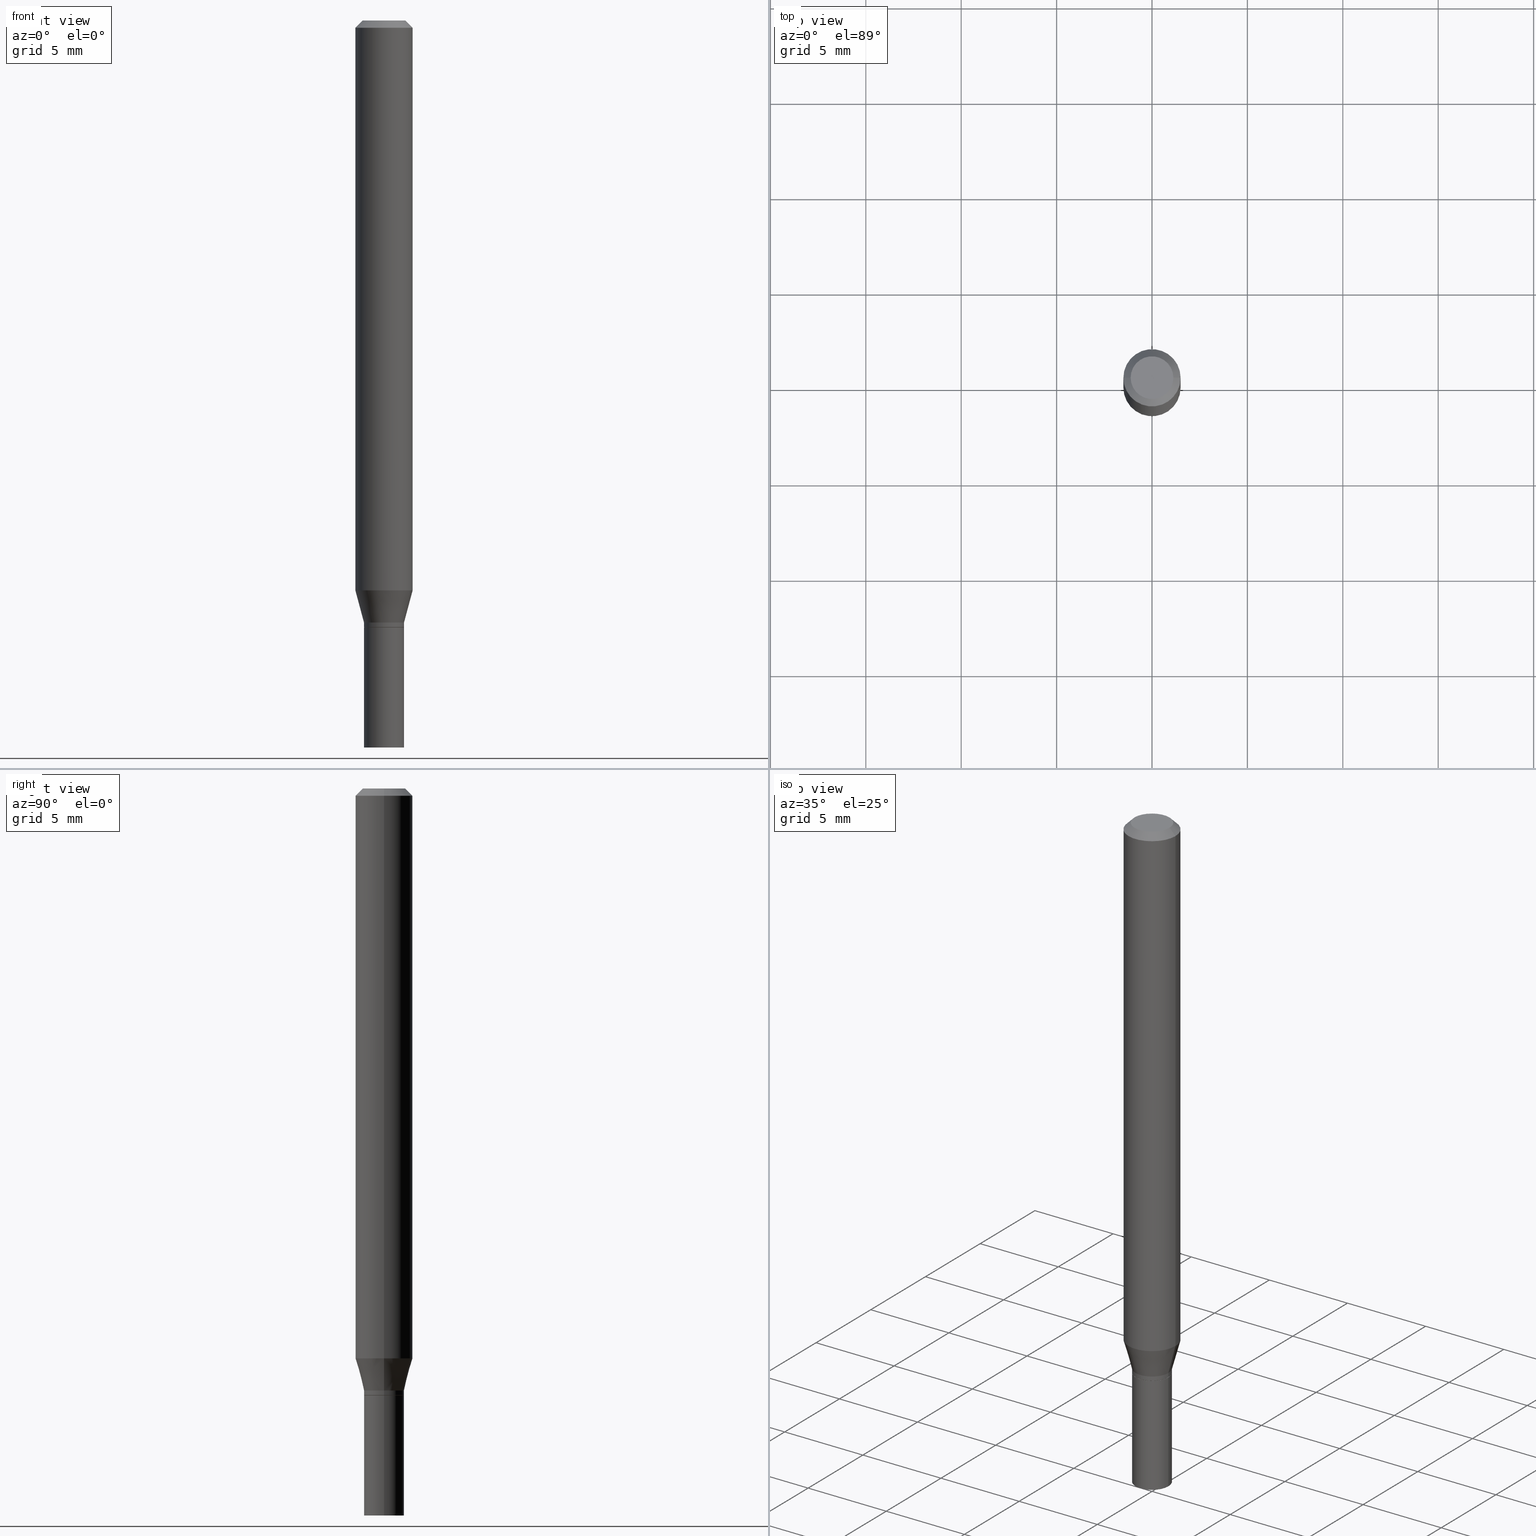
[diagram: canonical four-view strip — front | top / right | iso, engineering-drawing reading convention]
A machine part, canonical four-view strip (front | top / right | iso — engineering-drawing reading convention). The complete STEP part file that produces these views, byte-faithful:
ISO-10303-21;
HEADER;
FILE_DESCRIPTION (( 'STEP AP203' ),
    '1' );
FILE_NAME ('02882.STEP',
    '2024-03-18T21:57:04',
    ( '' ),
    ( '' ),
    'SwSTEP 2.0',
    'SolidWorks 2023',
    '' );
FILE_SCHEMA (( 'CONFIG_CONTROL_DESIGN' ));
ENDSEC;

DATA;
#1 = LINE ( 'NONE', #282, #101 ) ;
#2 = LINE ( 'NONE', #326, #242 ) ;
#3 = ADVANCED_FACE ( 'NONE', ( #92 ), #342, .T. ) ;
#4 = DIRECTION ( 'NONE',  ( -2.445468806185136877E-29, 3.491481338843145188E-15, 1.000000000000000000 ) ) ;
#5 = PERSON_AND_ORGANIZATION ( #107, #453 ) ;
#6 = CARTESIAN_POINT ( 'NONE',  ( 0.04134999999999999787, -4.660080142953946220E-15, -1.252000000000000224 ) ) ;
#7 = CIRCLE ( 'NONE', #362, 0.04084999999999999742 ) ;
#8 = APPROVAL_PERSON_ORGANIZATION ( #5, #310, #357 ) ;
#9 = VERTEX_POINT ( 'NONE', #338 ) ;
#10 = CARTESIAN_POINT ( 'NONE',  ( 0.000000000000000000, 0.000000000000000000, 0.000000000000000000 ) ) ;
#11 = PERSON_AND_ORGANIZATION_ROLE ( 'creator' ) ;
#12 = CARTESIAN_POINT ( 'NONE',  ( 0.04134999999999992154, -2.887455067223266003E-16, 2.016299096791615782E-30 ) ) ;
#13 = ORIENTED_EDGE ( 'NONE', *, *, #209, .F. ) ;
#14 = FACE_OUTER_BOUND ( 'NONE', #375, .T. ) ;
#15 = COORDINATED_UNIVERSAL_TIME_OFFSET ( 5, 0, .BEHIND. ) ;
#16 = APPROVAL ( #422, 'UNSPECIFIED' ) ;
#17 = ORIENTED_EDGE ( 'NONE', *, *, #201, .F. ) ;
#18 = DIRECTION ( 'NONE',  ( -2.445468806185136597E-29, 3.491481338843145583E-15, 1.000000000000000000 ) ) ;
#19 = DATE_TIME_ROLE ( 'classification_date' ) ;
#20 = CIRCLE ( 'NONE', #358, 0.04134999999999999787 ) ;
#21 = AXIS2_PLACEMENT_3D ( 'NONE', #333, #415, #225 ) ;
#22 = CARTESIAN_POINT ( 'NONE',  ( -0.05904999999999999832, -3.686206509597577830E-15, -1.175942700706030575 ) ) ;
#23 = DIRECTION ( 'NONE',  ( 1.000000000000000000, -6.982962677686273021E-15, 0.000000000000000000 ) ) ;
#24 = CARTESIAN_POINT ( 'NONE',  ( 3.668203209277705088E-31, -5.237222008264718399E-17, -0.01499999999999999944 ) ) ;
#25 = ADVANCED_FACE ( 'NONE', ( #231 ), #167, .F. ) ;
#26 = VERTEX_POINT ( 'NONE', #193 ) ;
#27 = DIRECTION ( 'NONE',  ( -2.445468806185136597E-29, 3.491481338843145583E-15, 1.000000000000000000 ) ) ;
#28 = CARTESIAN_POINT ( 'NONE',  ( 0.000000000000000000, 0.000000000000000000, 0.000000000000000000 ) ) ;
#29 = CARTESIAN_POINT ( 'NONE',  ( -0.04084999999999999742, -4.078428701499507560E-15, -1.252000000000000224 ) ) ;
#30 = CIRCLE ( 'NONE', #431, 0.04134999999999992154 ) ;
#31 = DIRECTION ( 'NONE',  ( -2.445468806185136877E-29, 3.491481338843145188E-15, 1.000000000000000000 ) ) ;
#32 = CIRCLE ( 'NONE', #316, 0.05904999999999999832 ) ;
#33 = EDGE_CURVE ( 'NONE', #295, #190, #20, .T. ) ;
#34 = LINE ( 'NONE', #181, #42 ) ;
#35 = LINE ( 'NONE', #293, #246 ) ;
#36 = AXIS2_PLACEMENT_3D ( 'NONE', #48, #355, #241 ) ;
#37 = CARTESIAN_POINT ( 'NONE',  ( -0.05904999999999999832, -1.659501622106942511E-15, -0.01499999999999999944 ) ) ;
#38 = CARTESIAN_POINT ( 'NONE',  ( 0.000000000000000000, 0.000000000000000000, 0.000000000000000000 ) ) ;
#39 = CALENDAR_DATE ( 2024, 18, 3 ) ;
#40 = ORIENTED_EDGE ( 'NONE', *, *, #102, .F. ) ;
#41 = CIRCLE ( 'NONE', #147, 0.05904999999999999832 ) ;
#42 = VECTOR ( 'NONE', #178, 39.37007874015748143 ) ;
#43 = CARTESIAN_POINT ( 'NONE',  ( 0.04134999999999991460, -4.625165329565513782E-15, -1.241999999999999993 ) ) ;
#44 = ADVANCED_FACE ( 'NONE', ( #164 ), #118, .F. ) ;
#45 = CARTESIAN_POINT ( 'NONE',  ( 3.668203209277705088E-31, -5.237222008264718399E-17, -0.01499999999999999944 ) ) ;
#46 = EDGE_LOOP ( 'NONE', ( #416, #447, #117, #192 ) ) ;
#47 = DIRECTION ( 'NONE',  ( -2.445468806185136597E-29, 3.491481338843145583E-15, 1.000000000000000000 ) ) ;
#48 = CARTESIAN_POINT ( 'NONE',  ( 5.113335882009178277E-45, -7.300488465081862281E-31, -2.090942999999186255E-16 ) ) ;
#49 = DIRECTION ( 'NONE',  ( -2.445468806185136597E-29, 3.491481338843145583E-15, 1.000000000000000000 ) ) ;
#50 = DIRECTION ( 'NONE',  ( 2.445468806185136597E-29, -3.491481338843145583E-15, -1.000000000000000000 ) ) ;
#51 = ORIENTED_EDGE ( 'NONE', *, *, #318, .F. ) ;
#52 = DIRECTION ( 'NONE',  ( -1.000000000000000000, 6.982962677686265922E-15, -4.876176775795935793E-29 ) ) ;
#53 = DIRECTION ( 'NONE',  ( -2.445468806185136597E-29, 3.491481338843145583E-15, 1.000000000000000000 ) ) ;
#54 = DATE_AND_TIME ( #289, #197 ) ;
#55 = ORIENTED_EDGE ( 'NONE', *, *, #171, .T. ) ;
#56 = CC_DESIGN_PERSON_AND_ORGANIZATION_ASSIGNMENT ( #151, #79, ( #345 ) ) ;
#57 = AXIS2_PLACEMENT_3D ( 'NONE', #258, #307, #52 ) ;
#58 = CONICAL_SURFACE ( 'NONE', #397, 0.04134999999999991460, 0.2617993877991495189 ) ;
#59 = CARTESIAN_POINT ( 'NONE',  ( -0.05904999999999999832, 3.599717260347268549E-16, -0.01499999999999999944 ) ) ;
#60 = ORIENTED_EDGE ( 'NONE', *, *, #459, .F. ) ;
#61 = PLANE ( 'NONE',  #464 ) ;
#62 = VERTEX_POINT ( 'NONE', #227 ) ;
#63 = DIRECTION ( 'NONE',  ( -0.7071067811865524577, 2.468850131082309125E-15, -0.7071067811865424657 ) ) ;
#64 = CARTESIAN_POINT ( 'NONE',  ( -0.04134999999999999787, -4.510468901011368103E-15, -1.252000000000000224 ) ) ;
#65 =( CONVERSION_BASED_UNIT ( 'INCH', #315 ) LENGTH_UNIT ( ) NAMED_UNIT ( #156 ) );
#66 = EDGE_CURVE ( 'NONE', #300, #448, #314, .T. ) ;
#67 = AXIS2_PLACEMENT_3D ( 'NONE', #255, #74, #215 ) ;
#68 = APPROVAL_STATUS ( 'not_yet_approved' ) ;
#69 = DIRECTION ( 'NONE',  ( 0.7071067811865656694, -2.468850131082446387E-15, 0.7071067811865294761 ) ) ;
#70 = DESIGN_CONTEXT ( 'detailed design', #152, 'design' ) ;
#71 = VECTOR ( 'NONE', #376, 39.37007874015748143 ) ;
#72 = DIRECTION ( 'NONE',  ( -2.445468806185136877E-29, 3.491481338843145188E-15, 1.000000000000000000 ) ) ;
#73 = DIRECTION ( 'NONE',  ( -2.445468806185136597E-29, 3.491481338843145583E-15, 1.000000000000000000 ) ) ;
#74 = DIRECTION ( 'NONE',  ( 2.445468806185136597E-29, -3.491481338843145583E-15, -1.000000000000000000 ) ) ;
#75 = ADVANCED_FACE ( 'NONE', ( #126 ), #266, .T. ) ;
#76 = PLANE ( 'NONE',  #21 ) ;
#77 = CARTESIAN_POINT ( 'NONE',  ( 3.576687321579069994E-29, -5.368277968210015545E-15, -1.500000000000000222 ) ) ;
#78 = DIRECTION ( 'NONE',  ( -2.445468806185136597E-29, 3.491481338843145583E-15, 1.000000000000000000 ) ) ;
#79 = PERSON_AND_ORGANIZATION_ROLE ( 'design_supplier' ) ;
#80 = CLOSED_SHELL ( 'NONE', ( #330, #460, #88, #294, #3, #430, #435, #319, #428, #125, #146, #75 ) ) ;
#81 = VECTOR ( 'NONE', #283, 39.37007874015748854 ) ;
#82 = ORIENTED_EDGE ( 'NONE', *, *, #169, .F. ) ;
#83 = DIRECTION ( 'NONE',  ( 1.000000000000000000, -6.982962677686265922E-15, 4.876176775795935793E-29 ) ) ;
#84 = CARTESIAN_POINT ( 'NONE',  ( 3.061726945343791391E-29, -4.371334636231619274E-15, -1.252000000000000224 ) ) ;
#85 = SECURITY_CLASSIFICATION_LEVEL ( 'unclassified' ) ;
#86 = ORIENTED_EDGE ( 'NONE', *, *, #33, .F. ) ;
#87 = VERTEX_POINT ( 'NONE', #29 ) ;
#88 = ADVANCED_FACE ( 'NONE', ( #257 ), #170, .T. ) ;
#89 = ORIENTED_EDGE ( 'NONE', *, *, #366, .T. ) ;
#90 = FACE_OUTER_BOUND ( 'NONE', #423, .T. ) ;
#91 = PRODUCT_DEFINITION_SHAPE ( 'NONE', 'NONE',  #261 ) ;
#92 = FACE_OUTER_BOUND ( 'NONE', #214, .T. ) ;
#93 = DIRECTION ( 'NONE',  ( 1.000000000000000000, -6.982962677686267499E-15, 4.876176775795936353E-29 ) ) ;
#94 = PERSON_AND_ORGANIZATION ( #107, #453 ) ;
#95 = EDGE_LOOP ( 'NONE', ( #148, #377, #60, #226 ) ) ;
#96 = DIRECTION ( 'NONE',  ( -2.445468806185136597E-29, 3.491481338843145583E-15, 1.000000000000000000 ) ) ;
#97 = VERTEX_POINT ( 'NONE', #22 ) ;
#98 = ADVANCED_BREP_SHAPE_REPRESENTATION ( '02882', ( #312, #317, #243 ), #104 ) ;
#99 = CC_DESIGN_DATE_AND_TIME_ASSIGNMENT ( #54, #371, ( #261 ) ) ;
#100 =( NAMED_UNIT ( * ) PLANE_ANGLE_UNIT ( ) SI_UNIT ( $, .RADIAN. ) );
#101 = VECTOR ( 'NONE', #142, 39.37007874015748854 ) ;
#102 = EDGE_CURVE ( 'NONE', #239, #9, #30, .T. ) ;
#103 = AXIS2_PLACEMENT_3D ( 'NONE', #339, #18, #281 ) ;
#104 =( GEOMETRIC_REPRESENTATION_CONTEXT ( 3 ) GLOBAL_UNCERTAINTY_ASSIGNED_CONTEXT ( ( #349 ) ) GLOBAL_UNIT_ASSIGNED_CONTEXT ( ( #65, #100, #395 ) ) REPRESENTATION_CONTEXT ( 'NONE', 'WORKASPACE' ) );
#105 = PERSON_AND_ORGANIZATION_ROLE ( 'design_owner' ) ;
#106 = PERSON_AND_ORGANIZATION ( #107, #453 ) ;
#107 = PERSON ( 'UNSPECIFIED', 'UNSPECIFIED', 'UNSPECIFIED', ('UNSPECIFIED'), ('UNSPECIFIED'), ('UNSPECIFIED') ) ;
#108 = AXIS2_PLACEMENT_3D ( 'NONE', #379, #49, #454 ) ;
#109 = CARTESIAN_POINT ( 'NONE',  ( 3.060504210940699150E-29, -4.369588895562197771E-15, -1.251500000000000279 ) ) ;
#110 = CIRCLE ( 'NONE', #176, 0.04134999999999991460 ) ;
#111 = CC_DESIGN_APPROVAL ( #398, ( #261 ) ) ;
#112 = FACE_OUTER_BOUND ( 'NONE', #182, .T. ) ;
#113 = DIRECTION ( 'NONE',  ( 1.000000000000000000, -6.982962677686262766E-15, 0.000000000000000000 ) ) ;
#114 = APPROVAL_DATE_TIME ( #442, #16 ) ;
#115 = EDGE_CURVE ( 'NONE', #97, #62, #452, .T. ) ;
#116 = SHAPE_DEFINITION_REPRESENTATION ( #91, #98 ) ;
#117 = ORIENTED_EDGE ( 'NONE', *, *, #270, .T. ) ;
#118 = PLANE ( 'NONE',  #401 ) ;
#119 = DIRECTION ( 'NONE',  ( -2.445468806185136597E-29, 3.491481338843145583E-15, 1.000000000000000000 ) ) ;
#120 = EDGE_LOOP ( 'NONE', ( #199, #271 ) ) ;
#121 = ORIENTED_EDGE ( 'NONE', *, *, #303, .T. ) ;
#122 = FACE_OUTER_BOUND ( 'NONE', #46, .T. ) ;
#123 = AXIS2_PLACEMENT_3D ( 'NONE', #287, #254, #291 ) ;
#124 = SECURITY_CLASSIFICATION ( '', '', #85 ) ;
#125 = ADVANCED_FACE ( 'NONE', ( #409 ), #76, .F. ) ;
#126 = FACE_OUTER_BOUND ( 'NONE', #388, .T. ) ;
#127 = DIRECTION ( 'NONE',  ( 1.000000000000000000, -6.982962677686265922E-15, 4.888540261209747396E-29 ) ) ;
#128 = EDGE_LOOP ( 'NONE', ( #269, #337, #429, #157 ) ) ;
#129 = DIRECTION ( 'NONE',  ( -2.445468806185136877E-29, 3.491481338843145188E-15, 1.000000000000000000 ) ) ;
#130 = ORIENTED_EDGE ( 'NONE', *, *, #405, .T. ) ;
#131 = ORIENTED_EDGE ( 'NONE', *, *, #171, .F. ) ;
#132 = DIRECTION ( 'NONE',  ( 2.438088387897960049E-29, -3.491481338843145188E-15, -1.000000000000000000 ) ) ;
#133 = VECTOR ( 'NONE', #31, 39.37007874015748143 ) ;
#134 = ORIENTED_EDGE ( 'NONE', *, *, #390, .T. ) ;
#135 = EDGE_CURVE ( 'NONE', #306, #26, #139, .T. ) ;
#136 = CARTESIAN_POINT ( 'NONE',  ( 3.061726945343791391E-29, -4.371334636231619274E-15, -1.252000000000000224 ) ) ;
#137 = LINE ( 'NONE', #278, #81 ) ;
#138 = AXIS2_PLACEMENT_3D ( 'NONE', #411, #27, #187 ) ;
#139 = CIRCLE ( 'NONE', #36, 0.04404999999999999888 ) ;
#140 = CC_DESIGN_PERSON_AND_ORGANIZATION_ASSIGNMENT ( #185, #11, ( #345 ) ) ;
#141 = CIRCLE ( 'NONE', #280, 0.04134999999999999787 ) ;
#142 = DIRECTION ( 'NONE',  ( -0.2588190451025207950, 5.211531920934546309E-15, 0.9659258262890682012 ) ) ;
#143 = PRODUCT_RELATED_PRODUCT_CATEGORY ( 'detail', '', ( #418 ) ) ;
#144 = CARTESIAN_POINT ( 'NONE',  ( 3.061726945343791391E-29, -4.371334636231619274E-15, -1.252000000000000224 ) ) ;
#145 = CARTESIAN_POINT ( 'NONE',  ( 0.04404999999999999888, -3.798447818264464023E-16, -2.090942999999162343E-16 ) ) ;
#146 = ADVANCED_FACE ( 'NONE', ( #276 ), #359, .T. ) ;
#147 = AXIS2_PLACEMENT_3D ( 'NONE', #440, #78, #321 ) ;
#148 = ORIENTED_EDGE ( 'NONE', *, *, #279, .T. ) ;
#149 = ORIENTED_EDGE ( 'NONE', *, *, #340, .T. ) ;
#150 = CARTESIAN_POINT ( 'NONE',  ( 0.000000000000000000, 0.000000000000000000, 0.000000000000000000 ) ) ;
#151 = PERSON_AND_ORGANIZATION ( #107, #453 ) ;
#152 = APPLICATION_CONTEXT ( 'configuration controlled 3d designs of mechanical parts and assemblies' ) ;
#153 = CARTESIAN_POINT ( 'NONE',  ( 3.668203209277705088E-31, -5.237222008264718399E-17, -0.01499999999999999944 ) ) ;
#154 = ORIENTED_EDGE ( 'NONE', *, *, #465, .T. ) ;
#155 = ORIENTED_EDGE ( 'NONE', *, *, #465, .F. ) ;
#156 = DIMENSIONAL_EXPONENTS ( 1.000000000000000000, 0.000000000000000000, 0.000000000000000000, 0.000000000000000000, 0.000000000000000000, 0.000000000000000000, 0.000000000000000000 ) ;
#157 = ORIENTED_EDGE ( 'NONE', *, *, #179, .F. ) ;
#158 = DIRECTION ( 'NONE',  ( -2.445468806185136597E-29, 3.491481338843145583E-15, 1.000000000000000000 ) ) ;
#159 = CLOSED_SHELL ( 'NONE', ( #396, #44, #356, #25 ) ) ;
#160 = AXIS2_PLACEMENT_3D ( 'NONE', #335, #424, #127 ) ;
#161 = CALENDAR_DATE ( 2024, 18, 3 ) ;
#162 = CARTESIAN_POINT ( 'NONE',  ( 3.060504210940699150E-29, -4.369588895562197771E-15, -1.251500000000000279 ) ) ;
#163 = ORIENTED_EDGE ( 'NONE', *, *, #405, .F. ) ;
#164 = FACE_OUTER_BOUND ( 'NONE', #386, .T. ) ;
#165 = CARTESIAN_POINT ( 'NONE',  ( 3.668203209277704895E-29, -5.237222008264718177E-15, -1.500000000000000222 ) ) ;
#166 = ORIENTED_EDGE ( 'NONE', *, *, #284, .T. ) ;
#167 = PLANE ( 'NONE',  #57 ) ;
#168 = DIRECTION ( 'NONE',  ( 1.000000000000000000, -6.982962677686267499E-15, 4.876176775795936353E-29 ) ) ;
#169 = EDGE_CURVE ( 'NONE', #190, #295, #141, .T. ) ;
#170 = CONICAL_SURFACE ( 'NONE', #433, 0.05904999999999999832, 0.7853981633974553844 ) ;
#171 = EDGE_CURVE ( 'NONE', #240, #444, #110, .T. ) ;
#172 = AXIS2_PLACEMENT_3D ( 'NONE', #28, #53, #168 ) ;
#173 = LOCAL_TIME ( 17, 57, 4.000000000000000000, #259 ) ;
#174 = CC_DESIGN_PERSON_AND_ORGANIZATION_ASSIGNMENT ( #94, #216, ( #261 ) ) ;
#175 = DIRECTION ( 'NONE',  ( 1.000000000000000000, -6.982962677686267499E-15, 4.876176775795936353E-29 ) ) ;
#176 = AXIS2_PLACEMENT_3D ( 'NONE', #249, #96, #391 ) ;
#177 = CARTESIAN_POINT ( 'NONE',  ( 3.061726945343791391E-29, -4.371334636231619274E-15, -1.252000000000000224 ) ) ;
#178 = DIRECTION ( 'NONE',  ( -2.445468806185136877E-29, 3.491481338843145188E-15, 1.000000000000000000 ) ) ;
#179 = EDGE_CURVE ( 'NONE', #26, #263, #393, .T. ) ;
#180 = APPLICATION_CONTEXT ( 'configuration controlled 3d designs of mechanical parts and assemblies' ) ;
#181 = CARTESIAN_POINT ( 'NONE',  ( 0.04134999999999999787, -2.887455067223271427E-16, 2.016299096791619635E-30 ) ) ;
#182 = EDGE_LOOP ( 'NONE', ( #121, #166, #51, #13 ) ) ;
#183 = CYLINDRICAL_SURFACE ( 'NONE', #323, 0.04134999999999992154 ) ;
#184 = VECTOR ( 'NONE', #129, 39.37007874015748143 ) ;
#185 = PERSON_AND_ORGANIZATION ( #107, #453 ) ;
#186 = CONICAL_SURFACE ( 'NONE', #389, 0.04084999999999999742, 0.7853981633974739252 ) ;
#187 = DIRECTION ( 'NONE',  ( 1.000000000000000000, -6.982962677686275388E-15, 0.000000000000000000 ) ) ;
#188 = CARTESIAN_POINT ( 'NONE',  ( 0.05904999999999999832, -4.574846268510561447E-16, -0.01499999999999999944 ) ) ;
#189 = EDGE_LOOP ( 'NONE', ( #299, #392, #236, #89 ) ) ;
#190 = VERTEX_POINT ( 'NONE', #64 ) ;
#191 = CYLINDRICAL_SURFACE ( 'NONE', #103, 0.05904999999999999832 ) ;
#192 = ORIENTED_EDGE ( 'NONE', *, *, #366, .F. ) ;
#193 = CARTESIAN_POINT ( 'NONE',  ( -0.04404999999999999888, 3.337856159934030687E-16, -2.090942999999208688E-16 ) ) ;
#194 = DIRECTION ( 'NONE',  ( -2.445468806185136597E-29, 3.491481338843145583E-15, 1.000000000000000000 ) ) ;
#195 = VECTOR ( 'NONE', #69, 39.37007874015748143 ) ;
#196 = ORIENTED_EDGE ( 'NONE', *, *, #209, .T. ) ;
#197 = LOCAL_TIME ( 17, 57, 4.000000000000000000, #302 ) ;
#198 = LINE ( 'NONE', #311, #133 ) ;
#199 = ORIENTED_EDGE ( 'NONE', *, *, #33, .T. ) ;
#200 = LINE ( 'NONE', #421, #184 ) ;
#201 = EDGE_CURVE ( 'NONE', #448, #190, #198, .T. ) ;
#202 = DIRECTION ( 'NONE',  ( -2.445468806185136597E-29, 3.491481338843145583E-15, 1.000000000000000000 ) ) ;
#203 = AXIS2_PLACEMENT_3D ( 'NONE', #109, #324, #113 ) ;
#204 = APPROVAL_PERSON_ORGANIZATION ( #298, #16, #450 ) ;
#205 = CARTESIAN_POINT ( 'NONE',  ( 3.061726945343791391E-29, -4.371334636231619274E-15, -1.252000000000000224 ) ) ;
#206 = EDGE_CURVE ( 'NONE', #444, #62, #137, .T. ) ;
#207 = AXIS2_PLACEMENT_3D ( 'NONE', #177, #445, #365 ) ;
#208 = VECTOR ( 'NONE', #4, 39.37007874015748143 ) ;
#209 = EDGE_CURVE ( 'NONE', #296, #9, #437, .T. ) ;
#210 = APPROVAL_ROLE ( '' ) ;
#211 = CARTESIAN_POINT ( 'NONE',  ( -0.04134999999999991460, -3.864408455601981627E-15, -1.241999999999999993 ) ) ;
#212 = CC_DESIGN_PERSON_AND_ORGANIZATION_ASSIGNMENT ( #466, #105, ( #418 ) ) ;
#213 = CARTESIAN_POINT ( 'NONE',  ( 0.04134999999999999787, -5.525967514987045911E-15, -1.500000000000000222 ) ) ;
#214 = EDGE_LOOP ( 'NONE', ( #230, #149, #410, #348 ) ) ;
#215 = DIRECTION ( 'NONE',  ( -1.000000000000000000, 6.982962677686266711E-15, 0.000000000000000000 ) ) ;
#216 = PERSON_AND_ORGANIZATION_ROLE ( 'creator' ) ;
#217 = APPROVAL_DATE_TIME ( #341, #310 ) ;
#218 = ORIENTED_EDGE ( 'NONE', *, *, #439, .T. ) ;
#219 = AXIS2_PLACEMENT_3D ( 'NONE', #420, #202, #350 ) ;
#220 = DIRECTION ( 'NONE',  ( -2.438088387897960049E-29, 3.491481338843145188E-15, 1.000000000000000000 ) ) ;
#221 = DIRECTION ( 'NONE',  ( -2.445468806185136597E-29, 3.491481338843145583E-15, 1.000000000000000000 ) ) ;
#222 = CC_DESIGN_APPROVAL ( #310, ( #124 ) ) ;
#223 = ORIENTED_EDGE ( 'NONE', *, *, #303, .F. ) ;
#224 = CC_DESIGN_DATE_AND_TIME_ASSIGNMENT ( #381, #19, ( #124 ) ) ;
#225 = DIRECTION ( 'NONE',  ( 1.000000000000000000, -6.982962677686265922E-15, 4.876176775795935793E-29 ) ) ;
#226 = ORIENTED_EDGE ( 'NONE', *, *, #270, .F. ) ;
#227 = CARTESIAN_POINT ( 'NONE',  ( 0.05904999999999999832, -4.518125941181290665E-15, -1.175942700706030575 ) ) ;
#228 = DIRECTION ( 'NONE',  ( -1.000000000000000000, 6.982962677686265922E-15, -4.876176775795935793E-29 ) ) ;
#229 = PERSON_AND_ORGANIZATION_ROLE ( 'classification_officer' ) ;
#230 = ORIENTED_EDGE ( 'NONE', *, *, #237, .T. ) ;
#231 = FACE_OUTER_BOUND ( 'NONE', #120, .T. ) ;
#232 = DIRECTION ( 'NONE',  ( 1.000000000000000000, -6.982962677686261189E-15, 0.000000000000000000 ) ) ;
#233 = ORIENTED_EDGE ( 'NONE', *, *, #102, .T. ) ;
#234 = DIRECTION ( 'NONE',  ( -2.445468806185136597E-29, 3.491481338843145583E-15, 1.000000000000000000 ) ) ;
#235 = CC_DESIGN_PERSON_AND_ORGANIZATION_ASSIGNMENT ( #446, #229, ( #124 ) ) ;
#236 = ORIENTED_EDGE ( 'NONE', *, *, #179, .T. ) ;
#237 = EDGE_CURVE ( 'NONE', #444, #240, #426, .T. ) ;
#238 = DIRECTION ( 'NONE',  ( -2.445468806185136597E-29, 3.491481338843145583E-15, 1.000000000000000000 ) ) ;
#239 = VERTEX_POINT ( 'NONE', #402 ) ;
#240 = VERTEX_POINT ( 'NONE', #211 ) ;
#241 = DIRECTION ( 'NONE',  ( 1.000000000000000000, -6.982962677686265922E-15, 4.888540261209747396E-29 ) ) ;
#242 = VECTOR ( 'NONE', #400, 39.37007874015748143 ) ;
#243 = AXIS2_PLACEMENT_3D ( 'NONE', #38, #322, #361 ) ;
#244 = EDGE_LOOP ( 'NONE', ( #17, #130, #218, #82 ) ) ;
#245 = EDGE_CURVE ( 'NONE', #239, #240, #35, .T. ) ;
#246 = VECTOR ( 'NONE', #72, 39.37007874015748143 ) ;
#247 = APPROVAL_STATUS ( 'not_yet_approved' ) ;
#248 = APPLICATION_PROTOCOL_DEFINITION ( 'international standard', 'config_control_design', 1994, #152 ) ;
#249 = CARTESIAN_POINT ( 'NONE',  ( 3.037272257281939846E-29, -4.336419822843186836E-15, -1.241999999999999993 ) ) ;
#250 = CARTESIAN_POINT ( 'NONE',  ( 0.04084999999999999742, -4.656588661615103213E-15, -1.252000000000000224 ) ) ;
#251 = COORDINATED_UNIVERSAL_TIME_OFFSET ( 5, 0, .BEHIND. ) ;
#252 = DIRECTION ( 'NONE',  ( -2.445468806185136597E-29, 3.491481338843145583E-15, 1.000000000000000000 ) ) ;
#253 = CARTESIAN_POINT ( 'NONE',  ( 0.04084999999999999742, -4.656588661615103213E-15, -1.252000000000000224 ) ) ;
#254 = DIRECTION ( 'NONE',  ( -2.445468806185136597E-29, 3.491481338843145583E-15, 1.000000000000000000 ) ) ;
#255 = CARTESIAN_POINT ( 'NONE',  ( 3.668203209277705088E-31, -5.237222008264718399E-17, -0.01499999999999999944 ) ) ;
#256 = DIRECTION ( 'NONE',  ( 1.000000000000000000, -6.982962677686261189E-15, 0.000000000000000000 ) ) ;
#257 = FACE_OUTER_BOUND ( 'NONE', #128, .T. ) ;
#258 = CARTESIAN_POINT ( 'NONE',  ( 2.887455067223577110E-16, 0.04134999999999562637, -1.252000000000000446 ) ) ;
#259 = COORDINATED_UNIVERSAL_TIME_OFFSET ( 5, 0, .BEHIND. ) ;
#260 = ORIENTED_EDGE ( 'NONE', *, *, #439, .F. ) ;
#261 = PRODUCT_DEFINITION ( 'UNKNOWN', '', #345, #70 ) ;
#262 = CONICAL_SURFACE ( 'NONE', #67, 0.05904999999999999832, 0.7853981633974553844 ) ;
#263 = VERTEX_POINT ( 'NONE', #37 ) ;
#264 = FACE_OUTER_BOUND ( 'NONE', #419, .T. ) ;
#265 = CALENDAR_DATE ( 2024, 18, 3 ) ;
#266 = CYLINDRICAL_SURFACE ( 'NONE', #219, 0.04134999999999992154 ) ;
#267 = DIRECTION ( 'NONE',  ( 1.000000000000000000, -6.982962677686273021E-15, 0.000000000000000000 ) ) ;
#268 = DIRECTION ( 'NONE',  ( -1.000000000000000000, 6.982962677686266711E-15, 0.000000000000000000 ) ) ;
#269 = ORIENTED_EDGE ( 'NONE', *, *, #135, .F. ) ;
#270 = EDGE_CURVE ( 'NONE', #62, #382, #2, .T. ) ;
#271 = ORIENTED_EDGE ( 'NONE', *, *, #169, .T. ) ;
#272 = DIRECTION ( 'NONE',  ( -2.445468806185136597E-29, 3.491481338843145583E-15, 1.000000000000000000 ) ) ;
#273 = FACE_OUTER_BOUND ( 'NONE', #244, .T. ) ;
#274 = CIRCLE ( 'NONE', #203, 0.04134999999999992154 ) ;
#275 = CC_DESIGN_SECURITY_CLASSIFICATION ( #124, ( #345 ) ) ;
#276 = FACE_OUTER_BOUND ( 'NONE', #408, .T. ) ;
#277 = ORIENTED_EDGE ( 'NONE', *, *, #66, .F. ) ;
#278 = CARTESIAN_POINT ( 'NONE',  ( 0.04134999999999991460, -4.625165329565513782E-15, -1.241999999999999993 ) ) ;
#279 = EDGE_CURVE ( 'NONE', #62, #97, #41, .T. ) ;
#280 = AXIS2_PLACEMENT_3D ( 'NONE', #136, #272, #354 ) ;
#281 = DIRECTION ( 'NONE',  ( 1.000000000000000000, -6.982962677686266711E-15, 4.876176775795936353E-29 ) ) ;
#282 = CARTESIAN_POINT ( 'NONE',  ( -0.04134999999999991460, -4.042610401606386214E-15, -1.241999999999999993 ) ) ;
#283 = DIRECTION ( 'NONE',  ( 0.2588190451025207950, 1.565188264969625912E-15, 0.9659258262890682012 ) ) ;
#284 = EDGE_CURVE ( 'NONE', #87, #239, #438, .T. ) ;
#285 = CARTESIAN_POINT ( 'NONE',  ( -0.04084999999999999742, -4.081077928673617972E-15, -1.252000000000000224 ) ) ;
#286 = AXIS2_PLACEMENT_3D ( 'NONE', #301, #458, #93 ) ;
#287 = CARTESIAN_POINT ( 'NONE',  ( 2.875731192437701941E-29, -4.105781995063916534E-15, -1.175942700706030575 ) ) ;
#288 = FACE_OUTER_BOUND ( 'NONE', #95, .T. ) ;
#289 = CALENDAR_DATE ( 2024, 18, 3 ) ;
#290 = DIRECTION ( 'NONE',  ( 1.000000000000000000, -6.982962677686266711E-15, 0.000000000000000000 ) ) ;
#291 = DIRECTION ( 'NONE',  ( 1.000000000000000000, -6.982962677686273021E-15, 0.000000000000000000 ) ) ;
#292 = ORIENTED_EDGE ( 'NONE', *, *, #340, .F. ) ;
#293 = CARTESIAN_POINT ( 'NONE',  ( -0.04134999999999992154, 2.938094212368008694E-16, -2.033979659820399598E-30 ) ) ;
#294 = ADVANCED_FACE ( 'NONE', ( #288 ), #412, .T. ) ;
#295 = VERTEX_POINT ( 'NONE', #6 ) ;
#296 = VERTEX_POINT ( 'NONE', #250 ) ;
#297 = DIRECTION ( 'NONE',  ( -2.445468806185136597E-29, 3.491481338843145583E-15, 1.000000000000000000 ) ) ;
#298 = PERSON_AND_ORGANIZATION ( #107, #453 ) ;
#299 = ORIENTED_EDGE ( 'NONE', *, *, #352, .F. ) ;
#300 = VERTEX_POINT ( 'NONE', #213 ) ;
#301 = CARTESIAN_POINT ( 'NONE',  ( 0.000000000000000000, 0.000000000000000000, 0.000000000000000000 ) ) ;
#302 = COORDINATED_UNIVERSAL_TIME_OFFSET ( 5, 0, .BEHIND. ) ;
#303 = EDGE_CURVE ( 'NONE', #296, #87, #309, .T. ) ;
#304 = ORIENTED_EDGE ( 'NONE', *, *, #368, .F. ) ;
#305 = ORIENTED_EDGE ( 'NONE', *, *, #135, .T. ) ;
#306 = VERTEX_POINT ( 'NONE', #145 ) ;
#307 = DIRECTION ( 'NONE',  ( 2.438088387897960049E-29, -3.491481338843145188E-15, -1.000000000000000000 ) ) ;
#308 = DIRECTION ( 'NONE',  ( 0.7071067811865524577, -7.319954787623271823E-15, -0.7071067811865424657 ) ) ;
#309 = CIRCLE ( 'NONE', #207, 0.04084999999999999742 ) ;
#310 = APPROVAL ( #247, 'UNSPECIFIED' ) ;
#311 = CARTESIAN_POINT ( 'NONE',  ( -0.04134999999999999787, 2.938094212368014117E-16, -2.033979659820403452E-30 ) ) ;
#312 = MANIFOLD_SOLID_BREP ( 'Body-Move/Copy2[1]', #159 ) ;
#313 = DIRECTION ( 'NONE',  ( 1.000000000000000000, -6.982962677686261189E-15, 0.000000000000000000 ) ) ;
#314 = CIRCLE ( 'NONE', #108, 0.04134999999999999787 ) ;
#315 = LENGTH_MEASURE_WITH_UNIT ( LENGTH_MEASURE( 0.02539999999999999897 ), #325 );
#316 = AXIS2_PLACEMENT_3D ( 'NONE', #153, #47, #290 ) ;
#317 = MANIFOLD_SOLID_BREP ( 'Body-Move/Copy2[2]', #80 ) ;
#318 = EDGE_CURVE ( 'NONE', #9, #239, #274, .T. ) ;
#319 = ADVANCED_FACE ( 'NONE', ( #406 ), #262, .T. ) ;
#320 = MECHANICAL_CONTEXT ( 'NONE', #180, 'mechanical' ) ;
#321 = DIRECTION ( 'NONE',  ( 1.000000000000000000, -6.982962677686273021E-15, 0.000000000000000000 ) ) ;
#322 = DIRECTION ( 'NONE',  ( 0.000000000000000000, 0.000000000000000000, 1.000000000000000000 ) ) ;
#323 = AXIS2_PLACEMENT_3D ( 'NONE', #150, #119, #175 ) ;
#324 = DIRECTION ( 'NONE',  ( -2.445468806185136597E-29, 3.491481338843145583E-15, 1.000000000000000000 ) ) ;
#325 =( LENGTH_UNIT ( ) NAMED_UNIT ( * ) SI_UNIT ( $, .METRE. ) );
#326 = CARTESIAN_POINT ( 'NONE',  ( 0.05904999999999999832, -4.123439461173740327E-16, 2.879382386107500220E-30 ) ) ;
#327 = DIRECTION ( 'NONE',  ( -2.445468806185136597E-29, 3.491481338843145583E-15, 1.000000000000000000 ) ) ;
#328 = CARTESIAN_POINT ( 'NONE',  ( -0.04134999999999999787, -4.510468901011368103E-15, -1.500000000000000222 ) ) ;
#329 = CIRCLE ( 'NONE', #160, 0.04404999999999999888 ) ;
#330 = ADVANCED_FACE ( 'NONE', ( #370 ), #183, .T. ) ;
#331 = ORIENTED_EDGE ( 'NONE', *, *, #368, .T. ) ;
#332 = LINE ( 'NONE', #12, #208 ) ;
#333 = CARTESIAN_POINT ( 'NONE',  ( 3.061726945343791391E-29, -4.371334636231619274E-15, -1.252000000000000224 ) ) ;
#334 = ORIENTED_EDGE ( 'NONE', *, *, #245, .T. ) ;
#335 = CARTESIAN_POINT ( 'NONE',  ( 5.113335882009178277E-45, -7.300488465081862281E-31, -2.090942999999186255E-16 ) ) ;
#336 = COORDINATED_UNIVERSAL_TIME_OFFSET ( 5, 0, .BEHIND. ) ;
#337 = ORIENTED_EDGE ( 'NONE', *, *, #352, .T. ) ;
#338 = CARTESIAN_POINT ( 'NONE',  ( 0.04134999999999992154, -4.658334402284523927E-15, -1.251500000000000279 ) ) ;
#339 = CARTESIAN_POINT ( 'NONE',  ( 0.000000000000000000, 0.000000000000000000, 0.000000000000000000 ) ) ;
#340 = EDGE_CURVE ( 'NONE', #240, #97, #1, .T. ) ;
#341 = DATE_AND_TIME ( #161, #434 ) ;
#342 = CONICAL_SURFACE ( 'NONE', #138, 0.04134999999999991460, 0.2617993877991495189 ) ;
#343 = CIRCLE ( 'NONE', #403, 0.04134999999999999787 ) ;
#344 = CARTESIAN_POINT ( 'NONE',  ( 3.061726945343791391E-29, -4.371334636231619274E-15, -1.252000000000000224 ) ) ;
#345 = PRODUCT_DEFINITION_FORMATION_WITH_SPECIFIED_SOURCE ( 'ANY', '', #418, .NOT_KNOWN. ) ;
#346 = EDGE_LOOP ( 'NONE', ( #351, #334, #369, #155 ) ) ;
#347 = CARTESIAN_POINT ( 'NONE',  ( 0.05904999999999999832, -4.647161662000212105E-16, -0.01499999999999999944 ) ) ;
#348 = ORIENTED_EDGE ( 'NONE', *, *, #206, .F. ) ;
#349 = UNCERTAINTY_MEASURE_WITH_UNIT (LENGTH_MEASURE( 1.000000000000000082E-05 ), #65, 'distance_accuracy_value', 'NONE');
#350 = DIRECTION ( 'NONE',  ( 1.000000000000000000, -6.982962677686267499E-15, 4.876176775795936353E-29 ) ) ;
#351 = ORIENTED_EDGE ( 'NONE', *, *, #318, .T. ) ;
#352 = EDGE_CURVE ( 'NONE', #306, #382, #436, .T. ) ;
#353 = AXIS2_PLACEMENT_3D ( 'NONE', #10, #221, #363 ) ;
#354 = DIRECTION ( 'NONE',  ( 1.000000000000000000, -6.982962677686273021E-15, 0.000000000000000000 ) ) ;
#355 = DIRECTION ( 'NONE',  ( -2.445468806185136597E-29, 3.491481338843145583E-15, 1.000000000000000000 ) ) ;
#356 = ADVANCED_FACE ( 'NONE', ( #273 ), #383, .T. ) ;
#357 = APPROVAL_ROLE ( '' ) ;
#358 = AXIS2_PLACEMENT_3D ( 'NONE', #344, #73, #23 ) ;
#359 = CONICAL_SURFACE ( 'NONE', #441, 0.04084999999999999742, 0.7853981633974739252 ) ;
#360 = LOCAL_TIME ( 17, 57, 4.000000000000000000, #15 ) ;
#361 = DIRECTION ( 'NONE',  ( 1.000000000000000000, 0.000000000000000000, 0.000000000000000000 ) ) ;
#362 = AXIS2_PLACEMENT_3D ( 'NONE', #84, #158, #232 ) ;
#363 = DIRECTION ( 'NONE',  ( 1.000000000000000000, -6.982962677686266711E-15, 4.876176775795936353E-29 ) ) ;
#364 = DIRECTION ( 'NONE',  ( -2.445468806185136597E-29, 3.491481338843145583E-15, 1.000000000000000000 ) ) ;
#365 = DIRECTION ( 'NONE',  ( 1.000000000000000000, -6.982962677686261189E-15, 0.000000000000000000 ) ) ;
#366 = EDGE_CURVE ( 'NONE', #263, #382, #463, .T. ) ;
#367 = CARTESIAN_POINT ( 'NONE',  ( 3.037272257281939846E-29, -4.336419822843186836E-15, -1.241999999999999993 ) ) ;
#368 = EDGE_CURVE ( 'NONE', #87, #296, #7, .T. ) ;
#369 = ORIENTED_EDGE ( 'NONE', *, *, #237, .F. ) ;
#370 = FACE_OUTER_BOUND ( 'NONE', #346, .T. ) ;
#371 = DATE_TIME_ROLE ( 'creation_date' ) ;
#372 = VECTOR ( 'NONE', #63, 39.37007874015748854 ) ;
#373 = APPROVAL_PERSON_ORGANIZATION ( #106, #398, #210 ) ;
#374 = ORIENTED_EDGE ( 'NONE', *, *, #284, .F. ) ;
#375 = EDGE_LOOP ( 'NONE', ( #292, #55, #385, #425 ) ) ;
#376 = DIRECTION ( 'NONE',  ( -0.7071067811865656694, 7.493145998870420424E-15, 0.7071067811865294761 ) ) ;
#377 = ORIENTED_EDGE ( 'NONE', *, *, #407, .T. ) ;
#378 = DIRECTION ( 'NONE',  ( 1.000000000000000000, -6.982962677686262766E-15, 0.000000000000000000 ) ) ;
#379 = CARTESIAN_POINT ( 'NONE',  ( 3.668203209277704895E-29, -5.237222008264718177E-15, -1.500000000000000222 ) ) ;
#380 = CARTESIAN_POINT ( 'NONE',  ( 3.037272257281939846E-29, -4.336419822843186836E-15, -1.241999999999999993 ) ) ;
#381 = DATE_AND_TIME ( #413, #173 ) ;
#382 = VERTEX_POINT ( 'NONE', #347 ) ;
#383 = CYLINDRICAL_SURFACE ( 'NONE', #286, 0.04134999999999999787 ) ;
#384 = DATE_AND_TIME ( #265, #404 ) ;
#385 = ORIENTED_EDGE ( 'NONE', *, *, #206, .T. ) ;
#386 = EDGE_LOOP ( 'NONE', ( #277, #163 ) ) ;
#387 = AXIS2_PLACEMENT_3D ( 'NONE', #24, #234, #417 ) ;
#388 = EDGE_LOOP ( 'NONE', ( #456, #233, #154, #131 ) ) ;
#389 = AXIS2_PLACEMENT_3D ( 'NONE', #144, #364, #256 ) ;
#390 = EDGE_CURVE ( 'NONE', #26, #306, #329, .T. ) ;
#391 = DIRECTION ( 'NONE',  ( 1.000000000000000000, -6.982962677686275388E-15, 0.000000000000000000 ) ) ;
#392 = ORIENTED_EDGE ( 'NONE', *, *, #390, .F. ) ;
#393 = LINE ( 'NONE', #59, #372 ) ;
#394 = VECTOR ( 'NONE', #308, 39.37007874015748854 ) ;
#395 =( NAMED_UNIT ( * ) SI_UNIT ( $, .STERADIAN. ) SOLID_ANGLE_UNIT ( ) );
#396 = ADVANCED_FACE ( 'NONE', ( #90 ), #427, .T. ) ;
#397 = AXIS2_PLACEMENT_3D ( 'NONE', #380, #297, #449 ) ;
#398 = APPROVAL ( #68, 'UNSPECIFIED' ) ;
#399 = DIRECTION ( 'NONE',  ( 1.000000000000000000, -6.982962677686275388E-15, 0.000000000000000000 ) ) ;
#400 = DIRECTION ( 'NONE',  ( -2.445468806185136877E-29, 3.491481338843145188E-15, 1.000000000000000000 ) ) ;
#401 = AXIS2_PLACEMENT_3D ( 'NONE', #77, #220, #83 ) ;
#402 = CARTESIAN_POINT ( 'NONE',  ( -0.04134999999999992154, -4.075779474325397148E-15, -1.251500000000000279 ) ) ;
#403 = AXIS2_PLACEMENT_3D ( 'NONE', #165, #194, #267 ) ;
#404 = LOCAL_TIME ( 17, 57, 4.000000000000000000, #251 ) ;
#405 = EDGE_CURVE ( 'NONE', #448, #300, #343, .T. ) ;
#406 = FACE_OUTER_BOUND ( 'NONE', #189, .T. ) ;
#407 = EDGE_CURVE ( 'NONE', #97, #263, #200, .T. ) ;
#408 = EDGE_LOOP ( 'NONE', ( #374, #331, #196, #40 ) ) ;
#409 = FACE_OUTER_BOUND ( 'NONE', #457, .T. ) ;
#410 = ORIENTED_EDGE ( 'NONE', *, *, #279, .F. ) ;
#411 = CARTESIAN_POINT ( 'NONE',  ( 3.037272257281939846E-29, -4.336419822843186836E-15, -1.241999999999999993 ) ) ;
#412 = CYLINDRICAL_SURFACE ( 'NONE', #353, 0.05904999999999999832 ) ;
#413 = CALENDAR_DATE ( 2024, 18, 3 ) ;
#414 = AXIS2_PLACEMENT_3D ( 'NONE', #367, #252, #399 ) ;
#415 = DIRECTION ( 'NONE',  ( -2.438088387897960049E-29, 3.491481338843145188E-15, 1.000000000000000000 ) ) ;
#416 = ORIENTED_EDGE ( 'NONE', *, *, #407, .F. ) ;
#417 = DIRECTION ( 'NONE',  ( 1.000000000000000000, -6.982962677686266711E-15, 0.000000000000000000 ) ) ;
#418 = PRODUCT ( '02882', '02882', '', ( #320 ) ) ;
#419 = EDGE_LOOP ( 'NONE', ( #134, #305 ) ) ;
#420 = CARTESIAN_POINT ( 'NONE',  ( 0.000000000000000000, 0.000000000000000000, 0.000000000000000000 ) ) ;
#421 = CARTESIAN_POINT ( 'NONE',  ( -0.05904999999999999832, 4.195754854663391478E-16, -2.904631170795521892E-30 ) ) ;
#422 = APPROVAL_STATUS ( 'not_yet_approved' ) ;
#423 = EDGE_LOOP ( 'NONE', ( #443, #451, #86, #260 ) ) ;
#424 = DIRECTION ( 'NONE',  ( -2.445468806185136597E-29, 3.491481338843145583E-15, 1.000000000000000000 ) ) ;
#425 = ORIENTED_EDGE ( 'NONE', *, *, #115, .F. ) ;
#426 = CIRCLE ( 'NONE', #414, 0.04134999999999991460 ) ;
#427 = CYLINDRICAL_SURFACE ( 'NONE', #172, 0.04134999999999999787 ) ;
#428 = ADVANCED_FACE ( 'NONE', ( #264 ), #61, .F. ) ;
#429 = ORIENTED_EDGE ( 'NONE', *, *, #459, .T. ) ;
#430 = ADVANCED_FACE ( 'NONE', ( #14 ), #58, .T. ) ;
#431 = AXIS2_PLACEMENT_3D ( 'NONE', #162, #327, #378 ) ;
#432 = CC_DESIGN_APPROVAL ( #16, ( #345 ) ) ;
#433 = AXIS2_PLACEMENT_3D ( 'NONE', #45, #50, #268 ) ;
#434 = LOCAL_TIME ( 17, 57, 4.000000000000000000, #336 ) ;
#435 = ADVANCED_FACE ( 'NONE', ( #122 ), #191, .T. ) ;
#436 = LINE ( 'NONE', #188, #394 ) ;
#437 = LINE ( 'NONE', #253, #195 ) ;
#438 = LINE ( 'NONE', #285, #71 ) ;
#439 = EDGE_CURVE ( 'NONE', #300, #295, #34, .T. ) ;
#440 = CARTESIAN_POINT ( 'NONE',  ( 2.875731192437701941E-29, -4.105781995063916534E-15, -1.175942700706030575 ) ) ;
#441 = AXIS2_PLACEMENT_3D ( 'NONE', #205, #238, #313 ) ;
#442 = DATE_AND_TIME ( #39, #360 ) ;
#443 = ORIENTED_EDGE ( 'NONE', *, *, #66, .T. ) ;
#444 = VERTEX_POINT ( 'NONE', #43 ) ;
#445 = DIRECTION ( 'NONE',  ( -2.445468806185136597E-29, 3.491481338843145583E-15, 1.000000000000000000 ) ) ;
#446 = PERSON_AND_ORGANIZATION ( #107, #453 ) ;
#447 = ORIENTED_EDGE ( 'NONE', *, *, #115, .T. ) ;
#448 = VERTEX_POINT ( 'NONE', #328 ) ;
#449 = DIRECTION ( 'NONE',  ( 1.000000000000000000, -6.982962677686275388E-15, 0.000000000000000000 ) ) ;
#450 = APPROVAL_ROLE ( '' ) ;
#451 = ORIENTED_EDGE ( 'NONE', *, *, #201, .T. ) ;
#452 = CIRCLE ( 'NONE', #123, 0.05904999999999999832 ) ;
#453 = ORGANIZATION ( 'UNSPECIFIED', 'UNSPECIFIED', '' ) ;
#454 = DIRECTION ( 'NONE',  ( 1.000000000000000000, -6.982962677686273021E-15, 0.000000000000000000 ) ) ;
#455 = APPROVAL_DATE_TIME ( #384, #398 ) ;
#456 = ORIENTED_EDGE ( 'NONE', *, *, #245, .F. ) ;
#457 = EDGE_LOOP ( 'NONE', ( #223, #304 ) ) ;
#458 = DIRECTION ( 'NONE',  ( -2.445468806185136597E-29, 3.491481338843145583E-15, 1.000000000000000000 ) ) ;
#459 = EDGE_CURVE ( 'NONE', #382, #263, #32, .T. ) ;
#460 = ADVANCED_FACE ( 'NONE', ( #112 ), #186, .T. ) ;
#461 = CARTESIAN_POINT ( 'NONE',  ( 3.075995059520799729E-16, 0.04404999999999999888, -2.583469029759998662E-16 ) ) ;
#462 = APPLICATION_PROTOCOL_DEFINITION ( 'international standard', 'config_control_design', 1994, #180 ) ;
#463 = CIRCLE ( 'NONE', #387, 0.05904999999999999832 ) ;
#464 = AXIS2_PLACEMENT_3D ( 'NONE', #461, #132, #228 ) ;
#465 = EDGE_CURVE ( 'NONE', #9, #444, #332, .T. ) ;
#466 = PERSON_AND_ORGANIZATION ( #107, #453 ) ;
ENDSEC;
END-ISO-10303-21;
